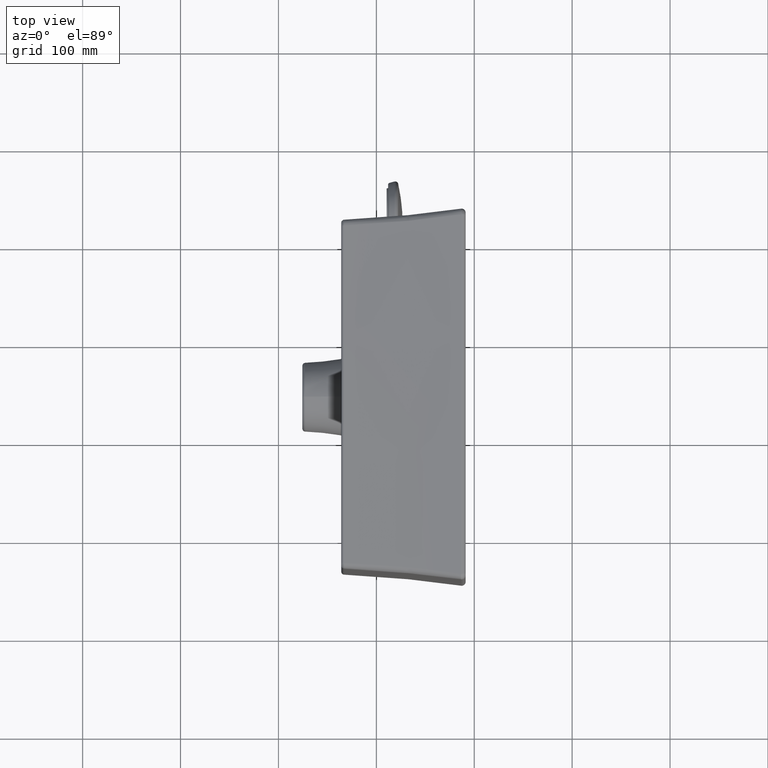
[diagram: clean part render]
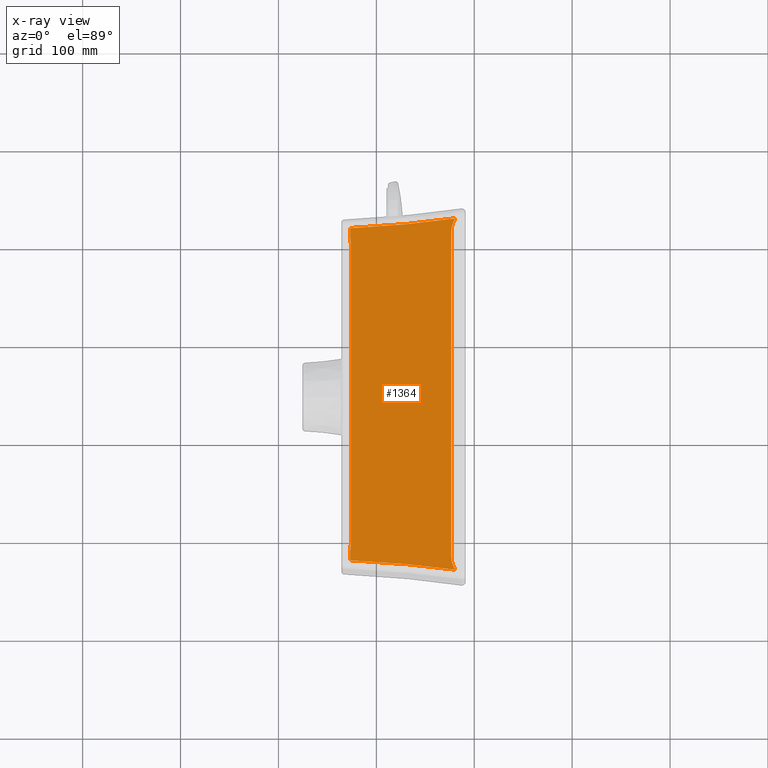
[diagram: x-ray — body ghosted, one internal face saturated and labeled with its STEP entity id]
A machine part, top view, then the same camera in x-ray: the body is ghosted and one INTERNAL B-rep face — a face not visible from any outside direction — is saturated and labeled: STEP entity #1364.
In plain terms, the highlighted face is a SurfaceOfRevolution surface.
Its self-contained STEP definition (entity closure, byte-faithful):
#155=SURFACE_OF_REVOLUTION('',#983,#171);
#171=AXIS1_PLACEMENT('',#19980,#8571);
#977=B_SPLINE_CURVE_WITH_KNOTS('',3,(#19940,#19941,#19942,#19943,#19944,
#19945),.UNSPECIFIED.,.F.,.F.,(4,2,4),(0.,0.5,1.),.UNSPECIFIED.);
#978=B_SPLINE_CURVE_WITH_KNOTS('',3,(#19947,#19948,#19949,#19950),
 .UNSPECIFIED.,.F.,.F.,(4,4),(0.,1.),.UNSPECIFIED.);
#979=B_SPLINE_CURVE_WITH_KNOTS('',3,(#19954,#19955,#19956,#19957),
 .UNSPECIFIED.,.F.,.F.,(4,4),(0.,1.),.UNSPECIFIED.);
#980=B_SPLINE_CURVE_WITH_KNOTS('',3,(#19958,#19959,#19960,#19961),
 .UNSPECIFIED.,.F.,.F.,(4,4),(0.,1.),.UNSPECIFIED.);
#981=B_SPLINE_CURVE_WITH_KNOTS('',3,(#19965,#19966,#19967,#19968),
 .UNSPECIFIED.,.F.,.F.,(4,4),(0.,1.),.UNSPECIFIED.);
#982=B_SPLINE_CURVE_WITH_KNOTS('',3,(#19970,#19971,#19972,#19973,#19974,
#19975),.UNSPECIFIED.,.F.,.F.,(4,2,4),(0.,0.5,1.),.UNSPECIFIED.);
#983=B_SPLINE_CURVE_WITH_KNOTS('',3,(#19976,#19977,#19978,#19979),
 .UNSPECIFIED.,.F.,.F.,(4,4),(0.,1.),.UNSPECIFIED.);
#1364=ADVANCED_FACE('',(#1948),#155,.F.);
#1948=FACE_OUTER_BOUND('',#2402,.F.);
#2402=EDGE_LOOP('',(#3812,#3813,#3814,#3815,#3816,#3817,#3818,#3819,#3820,
#3821));
#3812=ORIENTED_EDGE('',*,*,#5970,.T.);
#3813=ORIENTED_EDGE('',*,*,#5971,.T.);
#3814=ORIENTED_EDGE('',*,*,#5972,.F.);
#3815=ORIENTED_EDGE('',*,*,#5973,.F.);
#3816=ORIENTED_EDGE('',*,*,#5974,.F.);
#3817=ORIENTED_EDGE('',*,*,#5967,.F.);
#3818=ORIENTED_EDGE('',*,*,#5975,.T.);
#3819=ORIENTED_EDGE('',*,*,#5976,.T.);
#3820=ORIENTED_EDGE('',*,*,#5977,.T.);
#3821=ORIENTED_EDGE('',*,*,#5978,.F.);
#5098=VERTEX_POINT('',#19932);
#5099=VERTEX_POINT('',#19933);
#5100=VERTEX_POINT('',#19938);
#5101=VERTEX_POINT('',#19939);
#5102=VERTEX_POINT('',#19946);
#5103=VERTEX_POINT('',#19951);
#5104=VERTEX_POINT('',#19953);
#5105=VERTEX_POINT('',#19962);
#5106=VERTEX_POINT('',#19964);
#5107=VERTEX_POINT('',#19969);
#5967=EDGE_CURVE('',#5098,#5099,#6682,.T.);
#5970=EDGE_CURVE('',#5100,#5101,#6685,.T.);
#5971=EDGE_CURVE('',#5101,#5102,#977,.T.);
#5972=EDGE_CURVE('',#5103,#5102,#978,.T.);
#5973=EDGE_CURVE('',#5104,#5103,#6686,.T.);
#5974=EDGE_CURVE('',#5099,#5104,#979,.T.);
#5975=EDGE_CURVE('',#5098,#5105,#980,.T.);
#5976=EDGE_CURVE('',#5105,#5106,#6687,.T.);
#5977=EDGE_CURVE('',#5106,#5107,#981,.T.);
#5978=EDGE_CURVE('',#5100,#5107,#982,.T.);
#6682=CIRCLE('',#7335,19979.51394844);
#6685=CIRCLE('',#7339,19988.73287328);
#6686=CIRCLE('',#7340,19979.47201655);
#6687=CIRCLE('',#7341,19979.47201655);
#7335=AXIS2_PLACEMENT_3D('',#19931,#8557,#8558);
#7339=AXIS2_PLACEMENT_3D('',#19937,#8565,#8566);
#7340=AXIS2_PLACEMENT_3D('',#19952,#8567,#8568);
#7341=AXIS2_PLACEMENT_3D('',#19963,#8569,#8570);
#8557=DIRECTION('',(0.,1.,0.));
#8558=DIRECTION('',(0.999970550049752,0.,0.00767457055452363));
#8565=DIRECTION('',(0.,1.,0.));
#8566=DIRECTION('',(0.999965273127142,0.,0.00833381903813935));
#8567=DIRECTION('',(0.,1.,0.));
#8568=DIRECTION('',(0.999967683921963,0.,-0.0080393477189117));
#8569=DIRECTION('',(0.,-1.,0.));
#8570=DIRECTION('',(0.999967683921963,0.,0.0080393477189117));
#8571=DIRECTION('',(0.,1.,0.));
#19931=CARTESIAN_POINT('',(-19809.5,9.753791971041,0.));
#19932=CARTESIAN_POINT('',(169.425552749727,9.75379197129148,153.334189442432));
#19933=CARTESIAN_POINT('',(169.425552749727,9.75379197129148,-153.334189442432));
#19937=CARTESIAN_POINT('',(-19809.5,112.3318987045,0.));
#19938=CARTESIAN_POINT('',(178.5399450449,112.3391984207,166.5570563279));
#19939=CARTESIAN_POINT('',(178.5399450449,112.3391984207,-166.5570563279));
#19940=CARTESIAN_POINT('',(178.541167337925,112.348067245123,-166.557078085148));
#19941=CARTESIAN_POINT('',(178.521671176893,112.345133477825,-168.84822670174));
#19942=CARTESIAN_POINT('',(178.566137974949,112.804782908186,-171.04666300634));
#19943=CARTESIAN_POINT('',(178.727626863495,114.231594848429,-175.341773288346));
#19944=CARTESIAN_POINT('',(178.844489521743,115.194805653933,-177.407332305756));
#19945=CARTESIAN_POINT('',(178.9845105989,116.300680407308,-179.388914997541));
#19946=CARTESIAN_POINT('',(178.98451059889,116.300680407302,-179.388914997513));
#19947=CARTESIAN_POINT('',(169.252043984162,9.,-169.613752906725));
#19948=CARTESIAN_POINT('',(171.231280661673,44.9782518904661,-171.601431225358));
#19949=CARTESIAN_POINT('',(173.979737508099,80.911770127681,-174.361576911859));
#19950=CARTESIAN_POINT('',(178.984510598887,116.3006804073,-179.388914997493));
#19951=CARTESIAN_POINT('',(169.25204398327,9.,-169.613752905825));
#19952=CARTESIAN_POINT('',(-19809.5,9.,0.));
#19953=CARTESIAN_POINT('',(169.326358373966,8.99999999936015,-160.621922790039));
#19954=CARTESIAN_POINT('',(169.425552751041,9.7537919710193,-153.334189442428));
#19955=CARTESIAN_POINT('',(169.406707848459,9.75379197102366,-155.789616422698));
#19956=CARTESIAN_POINT('',(169.375745727997,9.54255097179803,-158.223029187891));
#19957=CARTESIAN_POINT('',(169.326358374855,8.99999999872031,-160.621922786939));
#19958=CARTESIAN_POINT('',(169.425552751041,9.75379197101932,153.334189442425));
#19959=CARTESIAN_POINT('',(169.406707848459,9.75379197102468,155.789616422696));
#19960=CARTESIAN_POINT('',(169.375745727997,9.54255097179854,158.223029187887));
#19961=CARTESIAN_POINT('',(169.326358374855,8.9999999987174,160.621922786936));
#19962=CARTESIAN_POINT('',(169.326358373966,8.99999999935775,160.621922790037));
#19963=CARTESIAN_POINT('',(-19809.5,9.,0.));
#19964=CARTESIAN_POINT('',(169.252043983279,9.,169.613752904927));
#19965=CARTESIAN_POINT('',(169.252043984179,9.,169.613752904936));
#19966=CARTESIAN_POINT('',(171.231280661696,44.9782518901473,171.601431220819));
#19967=CARTESIAN_POINT('',(173.979737507999,80.9117701271835,174.361576915035));
#19968=CARTESIAN_POINT('',(178.984510598925,116.3006804073,179.3889149933));
#19969=CARTESIAN_POINT('',(178.984510598723,116.30068040601,179.388914995223));
#19970=CARTESIAN_POINT('',(178.541167337925,112.348067245123,166.557078085148));
#19971=CARTESIAN_POINT('',(178.521671176897,112.345133477827,168.848226701297));
#19972=CARTESIAN_POINT('',(178.566137974933,112.804782908014,171.046663005493));
#19973=CARTESIAN_POINT('',(178.727626863419,114.231594847775,175.34177328671));
#19974=CARTESIAN_POINT('',(178.844489521772,115.194805654146,177.407332306138));
#19975=CARTESIAN_POINT('',(178.984510598901,116.300680407308,179.388914997539));
#19976=CARTESIAN_POINT('',(179.7894674442,116.3006804073,0.));
#19977=CARTESIAN_POINT('',(174.6983150667,80.62118310086,0.));
#19978=CARTESIAN_POINT('',(171.9544443845,44.732903092,0.));
#19979=CARTESIAN_POINT('',(169.9720165518,9.,0.));
#19980=CARTESIAN_POINT('',(-19809.5,126.,0.));